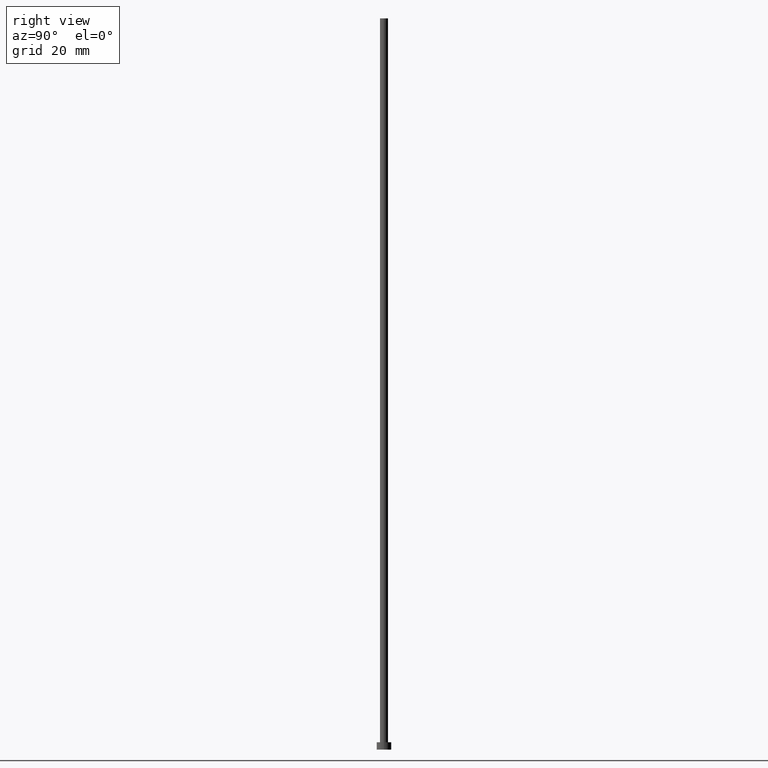
[diagram: clean part render]
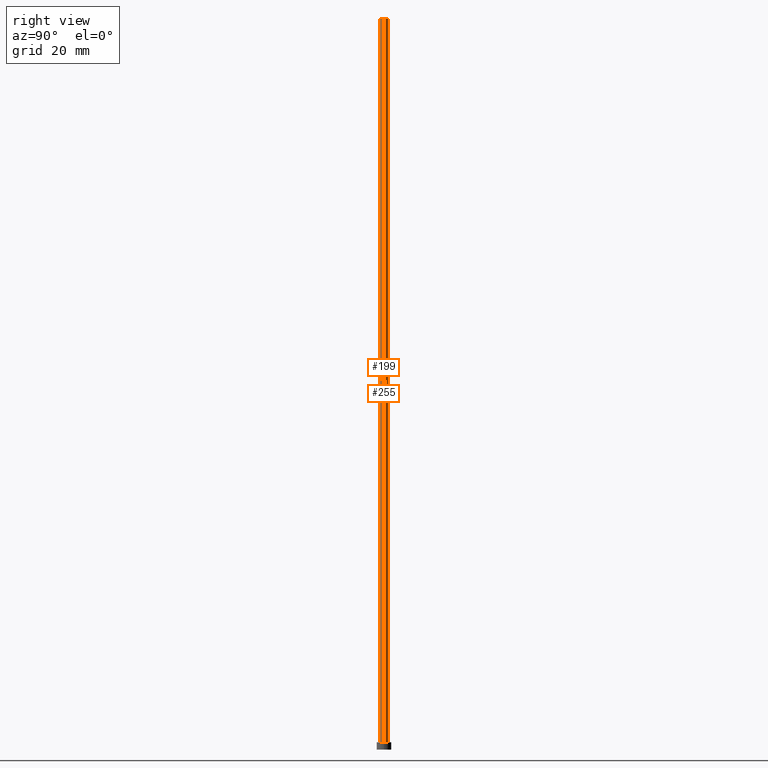
[diagram: same view with one multi-face feature highlighted, each face labeled with its STEP entity id]
A machine part, right view. The highlighted faces form ONE feature: a constant-radius fillet chain: 2 tangent blend faces with common blend radius 1.1 mm. The faces share edges in the B-rep.
Their STEP definitions:
[1] entity #255 (Cylinder):
#3 = VECTOR ( 'NONE', #12, 1000.000000000000000 ) ;
#12 = DIRECTION ( 'NONE',  ( -0.000000000000000000, -0.000000000000000000, -1.000000000000000000 ) ) ;
#13 = ORIENTED_EDGE ( 'NONE', *, *, #110, .F. ) ;
#21 = DIRECTION ( 'NONE',  ( 1.000000000000000000, 0.000000000000000000, 0.000000000000000000 ) ) ;
#39 = EDGE_CURVE ( 'NONE', #180, #122, #197, .T. ) ;
#41 = ORIENTED_EDGE ( 'NONE', *, *, #39, .F. ) ;
#57 = DIRECTION ( 'NONE',  ( 0.000000000000000000, 0.000000000000000000, 1.000000000000000000 ) ) ;
#58 = VECTOR ( 'NONE', #252, 1000.000000000000000 ) ;
#63 = CARTESIAN_POINT ( 'NONE',  ( 1.100000000000000089, 1.347111479062088503E-16, 200.0000000000000000 ) ) ;
#64 = DIRECTION ( 'NONE',  ( -1.000000000000000000, 0.000000000000000000, 0.000000000000000000 ) ) ;
#65 = EDGE_CURVE ( 'NONE', #249, #122, #216, .T. ) ;
#68 = CYLINDRICAL_SURFACE ( 'NONE', #96, 1.100000000000000089 ) ;
#91 = DIRECTION ( 'NONE',  ( 1.000000000000000000, 0.000000000000000000, 0.000000000000000000 ) ) ;
#96 = AXIS2_PLACEMENT_3D ( 'NONE', #244, #201, #64 ) ;
#110 = EDGE_CURVE ( 'NONE', #111, #180, #144, .T. ) ;
#111 = VERTEX_POINT ( 'NONE', #163 ) ;
#112 = AXIS2_PLACEMENT_3D ( 'NONE', #236, #57, #21 ) ;
#114 = CARTESIAN_POINT ( 'NONE',  ( 0.000000000000000000, 0.000000000000000000, 200.0000000000000000 ) ) ;
#119 = LINE ( 'NONE', #63, #3 ) ;
#122 = VERTEX_POINT ( 'NONE', #240 ) ;
#130 = ORIENTED_EDGE ( 'NONE', *, *, #234, .T. ) ;
#133 = EDGE_LOOP ( 'NONE', ( #13, #130, #206, #41 ) ) ;
#139 = FACE_OUTER_BOUND ( 'NONE', #133, .T. ) ;
#144 = CIRCLE ( 'NONE', #200, 1.100000000000000089 ) ;
#163 = CARTESIAN_POINT ( 'NONE',  ( 1.100000000000000089, 1.347111479062088503E-16, 200.0000000000000000 ) ) ;
#179 = CARTESIAN_POINT ( 'NONE',  ( -1.100000000000000089, 0.000000000000000000, 200.0000000000000000 ) ) ;
#180 = VERTEX_POINT ( 'NONE', #179 ) ;
#197 = LINE ( 'NONE', #212, #58 ) ;
#198 = DIRECTION ( 'NONE',  ( 0.000000000000000000, 0.000000000000000000, 1.000000000000000000 ) ) ;
#200 = AXIS2_PLACEMENT_3D ( 'NONE', #114, #198, #91 ) ;
#201 = DIRECTION ( 'NONE',  ( -0.000000000000000000, -0.000000000000000000, -1.000000000000000000 ) ) ;
#206 = ORIENTED_EDGE ( 'NONE', *, *, #65, .T. ) ;
#212 = CARTESIAN_POINT ( 'NONE',  ( -1.100000000000000089, 0.000000000000000000, 200.0000000000000000 ) ) ;
#216 = CIRCLE ( 'NONE', #112, 1.100000000000000089 ) ;
#234 = EDGE_CURVE ( 'NONE', #111, #249, #119, .T. ) ;
#236 = CARTESIAN_POINT ( 'NONE',  ( 0.000000000000000000, 0.000000000000000000, 2.000000000000000000 ) ) ;
#240 = CARTESIAN_POINT ( 'NONE',  ( -1.100000000000000089, 0.000000000000000000, 2.000000000000000000 ) ) ;
#244 = CARTESIAN_POINT ( 'NONE',  ( 0.000000000000000000, 0.000000000000000000, 200.0000000000000000 ) ) ;
#246 = CARTESIAN_POINT ( 'NONE',  ( 1.100000000000000089, 1.347111479062088503E-16, 2.000000000000000000 ) ) ;
#249 = VERTEX_POINT ( 'NONE', #246 ) ;
#252 = DIRECTION ( 'NONE',  ( -0.000000000000000000, -0.000000000000000000, -1.000000000000000000 ) ) ;
#255 = ADVANCED_FACE ( 'NONE', ( #139 ), #68, .T. ) ;
[2] entity #199 (Cylinder):
#3 = VECTOR ( 'NONE', #12, 1000.000000000000000 ) ;
#7 = CIRCLE ( 'NONE', #62, 1.100000000000000089 ) ;
#12 = DIRECTION ( 'NONE',  ( -0.000000000000000000, -0.000000000000000000, -1.000000000000000000 ) ) ;
#27 = CARTESIAN_POINT ( 'NONE',  ( 0.000000000000000000, 0.000000000000000000, 200.0000000000000000 ) ) ;
#39 = EDGE_CURVE ( 'NONE', #180, #122, #197, .T. ) ;
#51 = ORIENTED_EDGE ( 'NONE', *, *, #39, .T. ) ;
#58 = VECTOR ( 'NONE', #252, 1000.000000000000000 ) ;
#62 = AXIS2_PLACEMENT_3D ( 'NONE', #84, #221, #218 ) ;
#63 = CARTESIAN_POINT ( 'NONE',  ( 1.100000000000000089, 1.347111479062088503E-16, 200.0000000000000000 ) ) ;
#66 = CARTESIAN_POINT ( 'NONE',  ( 0.000000000000000000, 0.000000000000000000, 200.0000000000000000 ) ) ;
#82 = EDGE_CURVE ( 'NONE', #180, #111, #106, .T. ) ;
#84 = CARTESIAN_POINT ( 'NONE',  ( 0.000000000000000000, 0.000000000000000000, 2.000000000000000000 ) ) ;
#89 = FACE_OUTER_BOUND ( 'NONE', #126, .T. ) ;
#106 = CIRCLE ( 'NONE', #161, 1.100000000000000089 ) ;
#111 = VERTEX_POINT ( 'NONE', #163 ) ;
#119 = LINE ( 'NONE', #63, #3 ) ;
#122 = VERTEX_POINT ( 'NONE', #240 ) ;
#123 = CYLINDRICAL_SURFACE ( 'NONE', #128, 1.100000000000000089 ) ;
#125 = DIRECTION ( 'NONE',  ( -0.000000000000000000, -0.000000000000000000, -1.000000000000000000 ) ) ;
#126 = EDGE_LOOP ( 'NONE', ( #245, #132, #51, #183 ) ) ;
#128 = AXIS2_PLACEMENT_3D ( 'NONE', #66, #125, #142 ) ;
#132 = ORIENTED_EDGE ( 'NONE', *, *, #82, .F. ) ;
#135 = DIRECTION ( 'NONE',  ( 1.000000000000000000, 0.000000000000000000, 0.000000000000000000 ) ) ;
#142 = DIRECTION ( 'NONE',  ( -1.000000000000000000, 0.000000000000000000, 0.000000000000000000 ) ) ;
#161 = AXIS2_PLACEMENT_3D ( 'NONE', #27, #173, #135 ) ;
#163 = CARTESIAN_POINT ( 'NONE',  ( 1.100000000000000089, 1.347111479062088503E-16, 200.0000000000000000 ) ) ;
#173 = DIRECTION ( 'NONE',  ( 0.000000000000000000, 0.000000000000000000, 1.000000000000000000 ) ) ;
#179 = CARTESIAN_POINT ( 'NONE',  ( -1.100000000000000089, 0.000000000000000000, 200.0000000000000000 ) ) ;
#180 = VERTEX_POINT ( 'NONE', #179 ) ;
#183 = ORIENTED_EDGE ( 'NONE', *, *, #204, .T. ) ;
#197 = LINE ( 'NONE', #212, #58 ) ;
#199 = ADVANCED_FACE ( 'NONE', ( #89 ), #123, .T. ) ;
#204 = EDGE_CURVE ( 'NONE', #122, #249, #7, .T. ) ;
#212 = CARTESIAN_POINT ( 'NONE',  ( -1.100000000000000089, 0.000000000000000000, 200.0000000000000000 ) ) ;
#218 = DIRECTION ( 'NONE',  ( 1.000000000000000000, 0.000000000000000000, 0.000000000000000000 ) ) ;
#221 = DIRECTION ( 'NONE',  ( 0.000000000000000000, 0.000000000000000000, 1.000000000000000000 ) ) ;
#234 = EDGE_CURVE ( 'NONE', #111, #249, #119, .T. ) ;
#240 = CARTESIAN_POINT ( 'NONE',  ( -1.100000000000000089, 0.000000000000000000, 2.000000000000000000 ) ) ;
#245 = ORIENTED_EDGE ( 'NONE', *, *, #234, .F. ) ;
#246 = CARTESIAN_POINT ( 'NONE',  ( 1.100000000000000089, 1.347111479062088503E-16, 2.000000000000000000 ) ) ;
#249 = VERTEX_POINT ( 'NONE', #246 ) ;
#252 = DIRECTION ( 'NONE',  ( -0.000000000000000000, -0.000000000000000000, -1.000000000000000000 ) ) ;